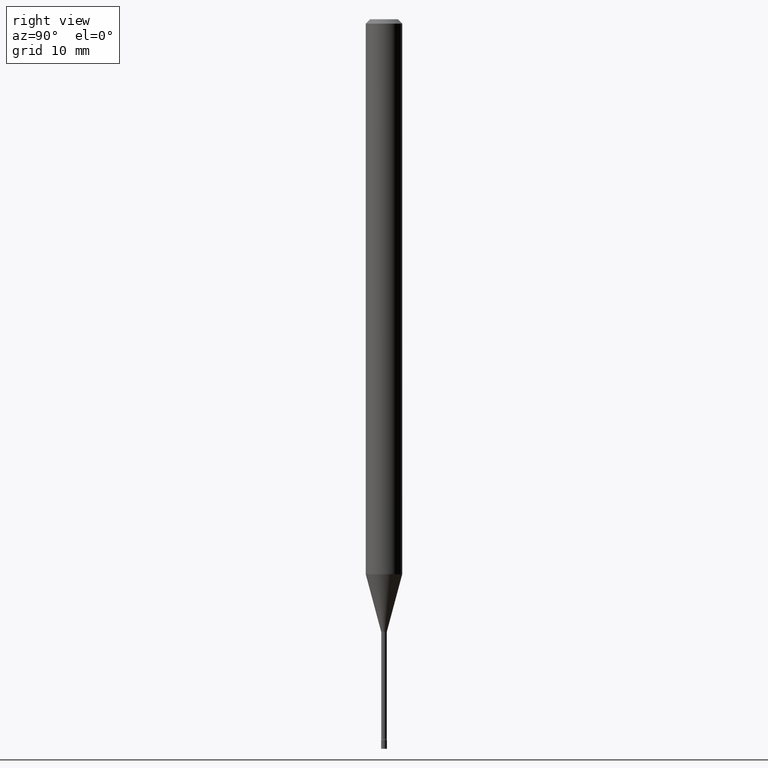
[diagram: clean part render]
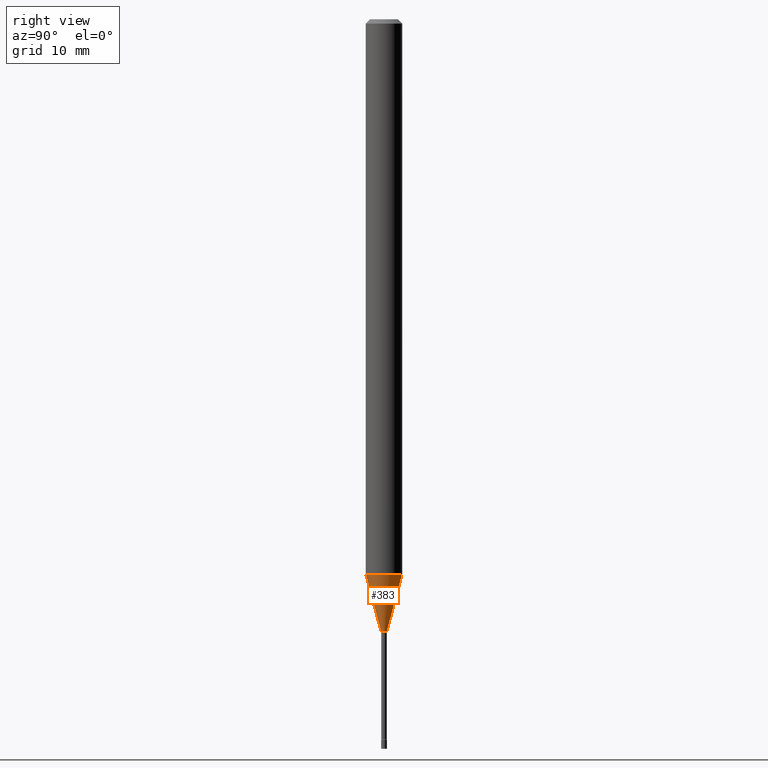
[diagram: same view with one face highlighted and labeled with its STEP entity id]
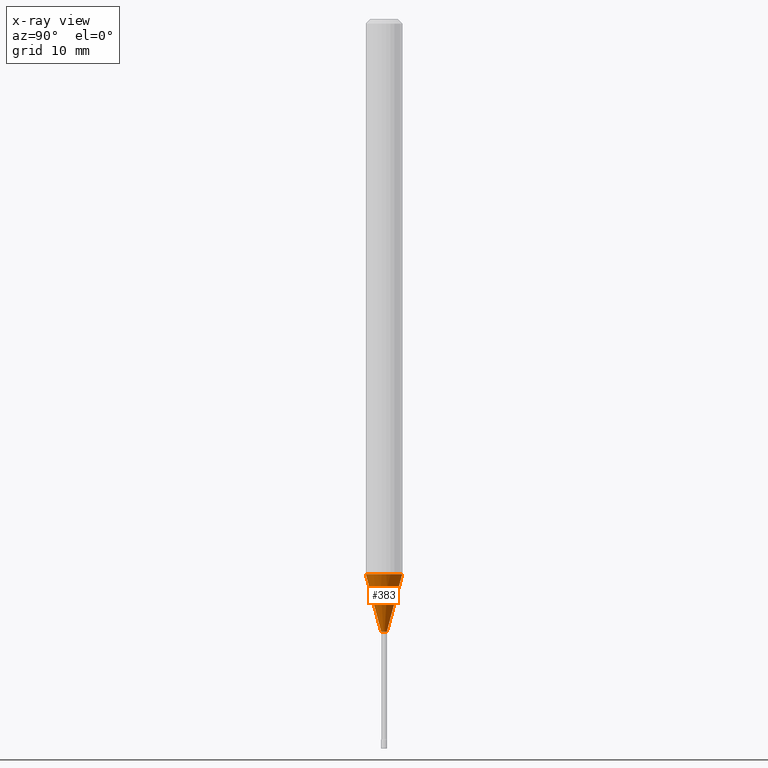
[diagram: x-ray of the same camera — body ghosted, the highlighted face saturated]
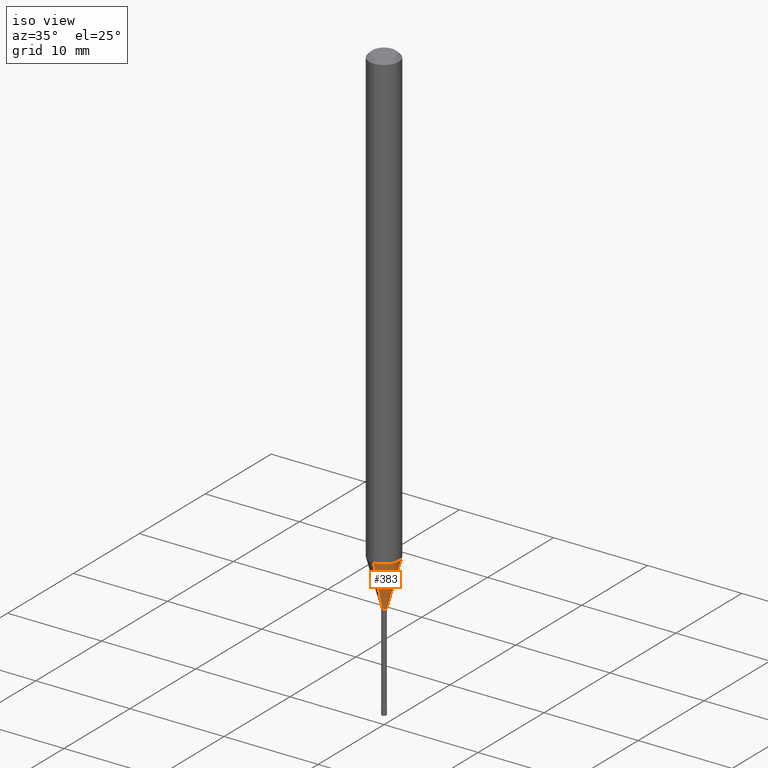
[diagram: same view with one face highlighted and labeled with its STEP entity id]
A machine part, right view. The second image highlights one B-rep face of the part: STEP entity #383.
The next image is the same camera in x-ray: the body ghosted, the highlighted face saturated — about 0% of this face is hidden behind the body in this view.
A second angle (iso view) of the same face is appended — the face is thin or edge-on in the first view.
In plain terms, the highlighted conical surface has half-angle 15 deg.
Its self-contained STEP definition (entity closure, byte-faithful):
#5 = EDGE_CURVE ( 'NONE', #497, #377, #201, .T. ) ;
#14 = EDGE_CURVE ( 'NONE', #372, #96, #35, .T. ) ;
#20 = DIRECTION ( 'NONE',  ( -2.445405021934253134E-29, 3.491572681520784952E-15, 1.000000000000000000 ) ) ;
#31 = CARTESIAN_POINT ( 'NONE',  ( 7.042269065260026074E-17, 0.009911112605656653002, -2.098092501787272912 ) ) ;
#35 = CIRCLE ( 'NONE', #325, 0.009911112605663977004 ) ;
#50 = AXIS2_PLACEMENT_3D ( 'NONE', #182, #487, #293 ) ;
#53 = CARTESIAN_POINT ( 'NONE',  ( 5.130685940353198878E-29, -7.325642462544040925E-15, -2.098092501787272912 ) ) ;
#61 = DIRECTION ( 'NONE',  ( -2.445405021934253134E-29, 3.491572681520784952E-15, 1.000000000000000000 ) ) ;
#96 = VERTEX_POINT ( 'NONE', #244 ) ;
#157 = EDGE_CURVE ( 'NONE', #372, #497, #431, .T. ) ;
#175 = EDGE_CURVE ( 'NONE', #96, #377, #422, .T. ) ;
#181 = FACE_OUTER_BOUND ( 'NONE', #188, .T. ) ;
#182 = CARTESIAN_POINT ( 'NONE',  ( 4.650739991775273824E-29, -6.640371046304054201E-15, -1.901828102118092945 ) ) ;
#186 = DIRECTION ( 'NONE',  ( -6.982962677686265922E-15, -1.000000000000000000, 0.000000000000000000 ) ) ;
#188 = EDGE_LOOP ( 'NONE', ( #190, #303, #337, #488 ) ) ;
#190 = ORIENTED_EDGE ( 'NONE', *, *, #14, .T. ) ;
#198 = DIRECTION ( 'NONE',  ( 1.839019923739596765E-15, 0.2588190451025244587, 0.9659258262890673130 ) ) ;
#201 = CIRCLE ( 'NONE', #50, 0.06250000000000000000 ) ;
#223 = CARTESIAN_POINT ( 'NONE',  ( 5.130685940353198878E-29, -7.325642462544040925E-15, -2.098092501787272912 ) ) ;
#226 = DIRECTION ( 'NONE',  ( -6.982962677686265922E-15, -1.000000000000000000, 0.000000000000000000 ) ) ;
#244 = CARTESIAN_POINT ( 'NONE',  ( 2.572559502513548023E-16, 0.009911112605656653002, -2.098092501787272912 ) ) ;
#251 = AXIS2_PLACEMENT_3D ( 'NONE', #53, #61, #226 ) ;
#257 = CARTESIAN_POINT ( 'NONE',  ( 4.440892098501090604E-16, 0.06249999999999336642, -1.901828102118093167 ) ) ;
#271 = CARTESIAN_POINT ( 'NONE',  ( -4.364351673553452252E-16, -0.06250000000000664746, -1.901828102118092501 ) ) ;
#288 = VECTOR ( 'NONE', #391, 39.37007874015748854 ) ;
#293 = DIRECTION ( 'NONE',  ( -6.982962677686265922E-15, -1.000000000000000000, 4.370956789862821150E-15 ) ) ;
#303 = ORIENTED_EDGE ( 'NONE', *, *, #175, .T. ) ;
#325 = AXIS2_PLACEMENT_3D ( 'NONE', #223, #20, #186 ) ;
#337 = ORIENTED_EDGE ( 'NONE', *, *, #5, .F. ) ;
#372 = VERTEX_POINT ( 'NONE', #437 ) ;
#377 = VERTEX_POINT ( 'NONE', #257 ) ;
#383 = ADVANCED_FACE ( 'NONE', ( #181 ), #433, .T. ) ;
#388 = VECTOR ( 'NONE', #198, 39.37007874015748143 ) ;
#391 = DIRECTION ( 'NONE',  ( -1.807323732225326589E-15, -0.2588190451025176864, 0.9659258262890690894 ) ) ;
#393 = CARTESIAN_POINT ( 'NONE',  ( -6.920892941964612771E-17, -0.009911112605671302742, -2.098092501787272912 ) ) ;
#422 = LINE ( 'NONE', #31, #388 ) ;
#431 = LINE ( 'NONE', #393, #288 ) ;
#433 = CONICAL_SURFACE ( 'NONE', #251, 0.009911112605663977004, 0.2617993877991497409 ) ;
#437 = CARTESIAN_POINT ( 'NONE',  ( -6.920892941964612771E-17, -0.009911112605671302742, -2.098092501787272912 ) ) ;
#487 = DIRECTION ( 'NONE',  ( -2.445405021934253134E-29, 3.491572681520784952E-15, 1.000000000000000000 ) ) ;
#488 = ORIENTED_EDGE ( 'NONE', *, *, #157, .F. ) ;
#497 = VERTEX_POINT ( 'NONE', #271 ) ;